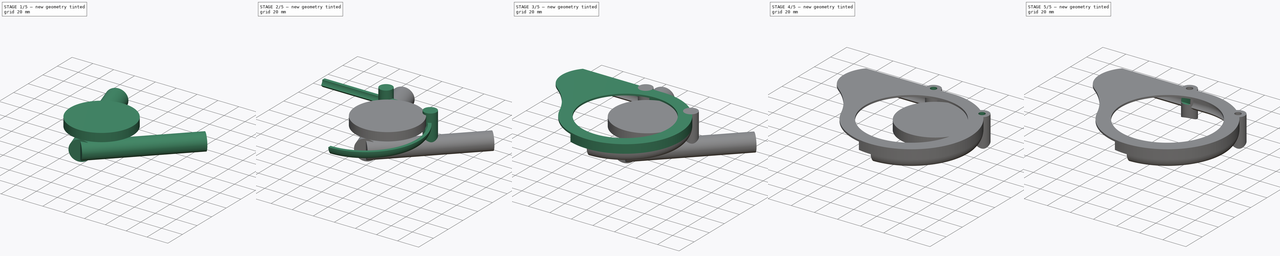
[diagram: build sequence overview — one tinted view per stage of 5, left to right]
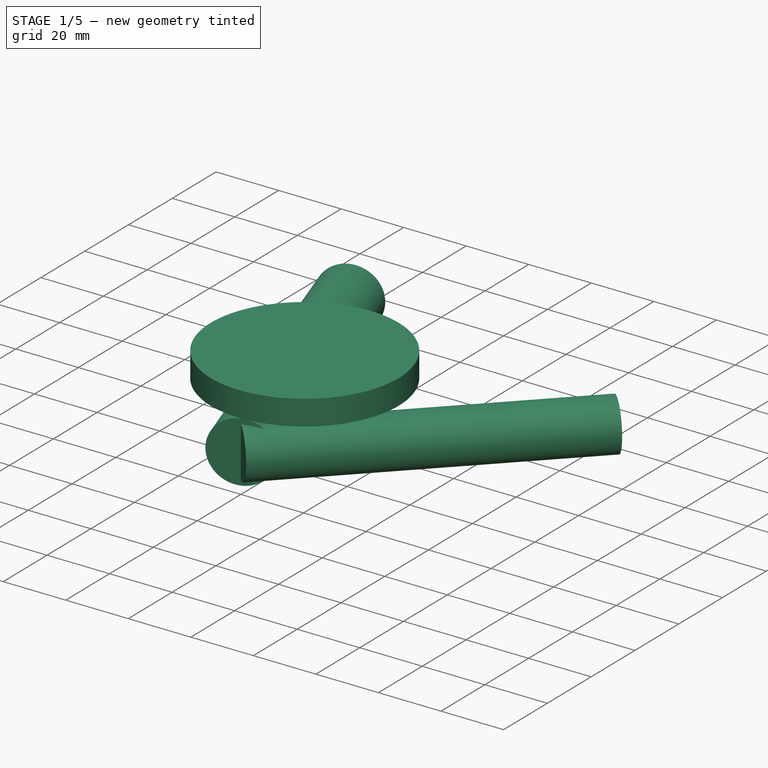
[diagram: stage 1 of 5 — iso view after this stage's code; geometry added in this stage tinted green]
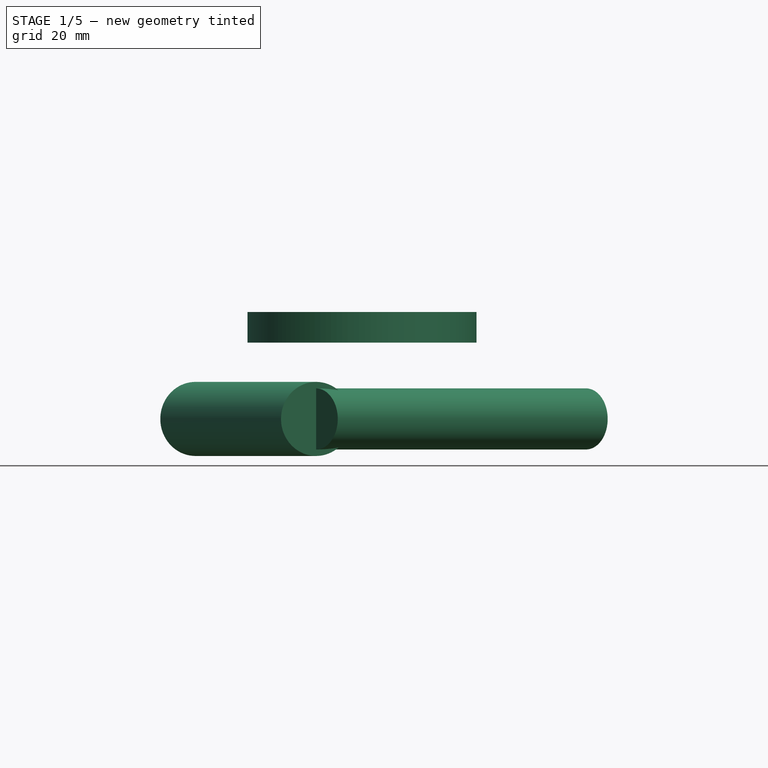
[diagram: stage 1 of 5 — front view after this stage's code; geometry added in this stage tinted green]
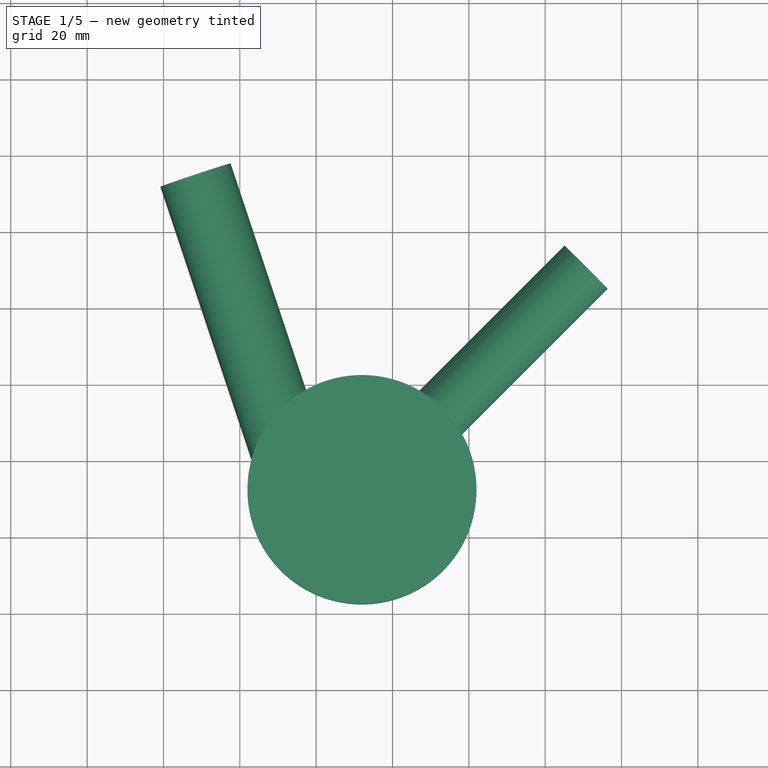
[diagram: stage 1 of 5 — top view after this stage's code; geometry added in this stage tinted green]
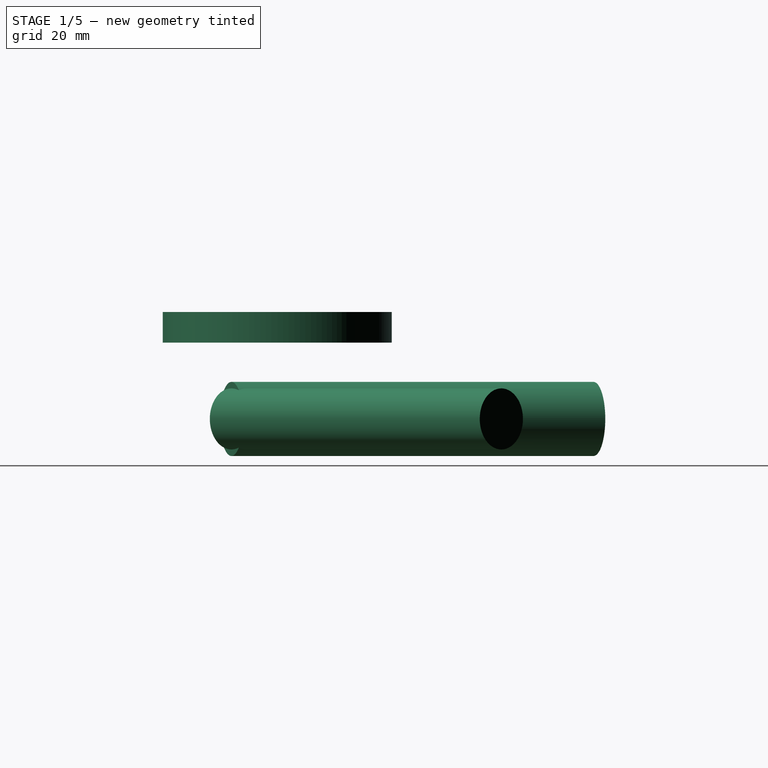
[diagram: stage 1 of 5 — right view after this stage's code; geometry added in this stage tinted green]
FCSTD DOCUMENT  (FreeCAD 0.16R)
Label: SimpleChainguard3
License: All rights reserved
LicenseURL: http://en.wikipedia.org/wiki/All_rights_reserved
objects: Sketcher::SketchObject×6, Part::Cylinder×4, PartDesign::Pad×3, Part::Cut×3, PartDesign::Pocket×2, Part::MultiFuse×2, PartDesign::Fillet×2, PartDesign::Revolution×1
note: 29 computed .brp shape members not serialized (recipe doc carries the construction recipe); baked Part::Feature solids carry a one-line shape summary decoded from their .brp

FEATURE [Part::Cylinder] Cylinder
  Angle = 360
  Height = 100
  Placement = pos=(0,0,-22) rot=(0.948683,0.316228,0;4.71239rad)
  Radius = 9.7
FEATURE [Part::Cylinder] Cylinder001
  Angle = 360
  Height = 100
  Placement = pos=(0,0,-22) rot=(-0.707107,0.707107,0;1.5708rad)
  Radius = 8
FEATURE [Part::Cylinder] Cylinder003
  Angle = 360
  Height = 8
  Placement = pos=(12,12,-2) rot=(0,0,1;0rad)
  Radius = 30
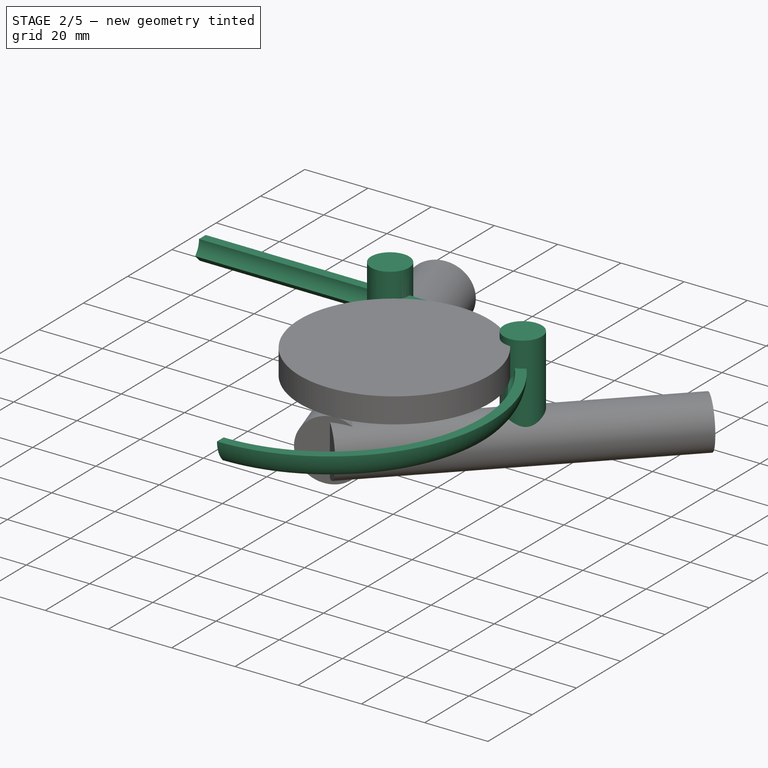
[diagram: stage 2 of 5 — iso view after this stage's code; geometry added in this stage tinted green]
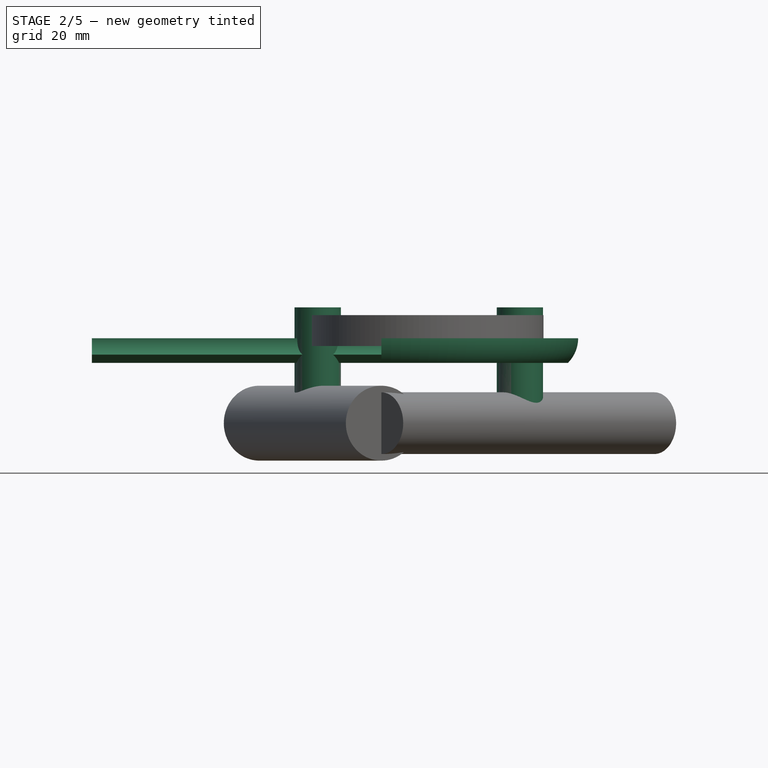
[diagram: stage 2 of 5 — front view after this stage's code; geometry added in this stage tinted green]
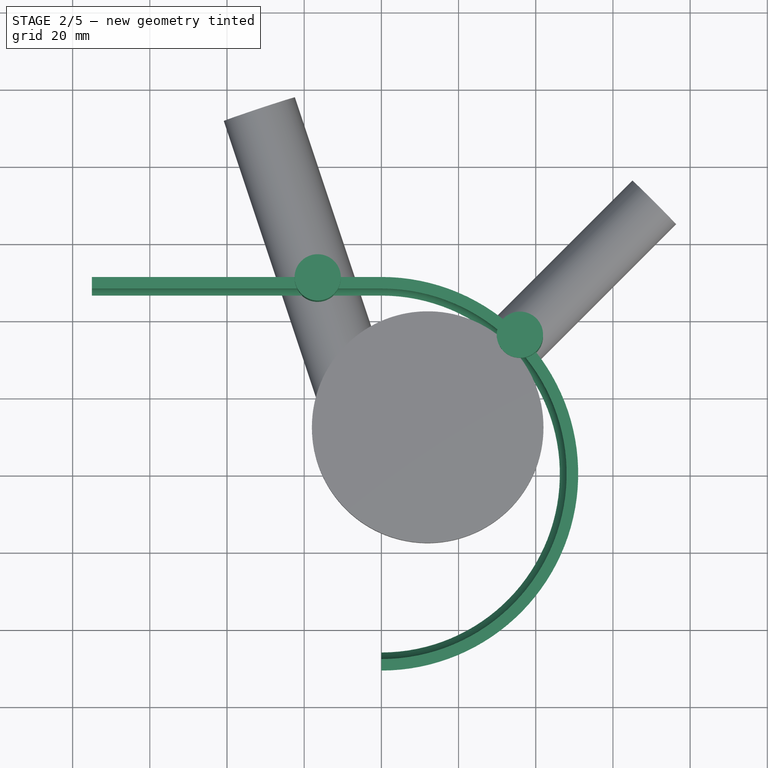
[diagram: stage 2 of 5 — top view after this stage's code; geometry added in this stage tinted green]
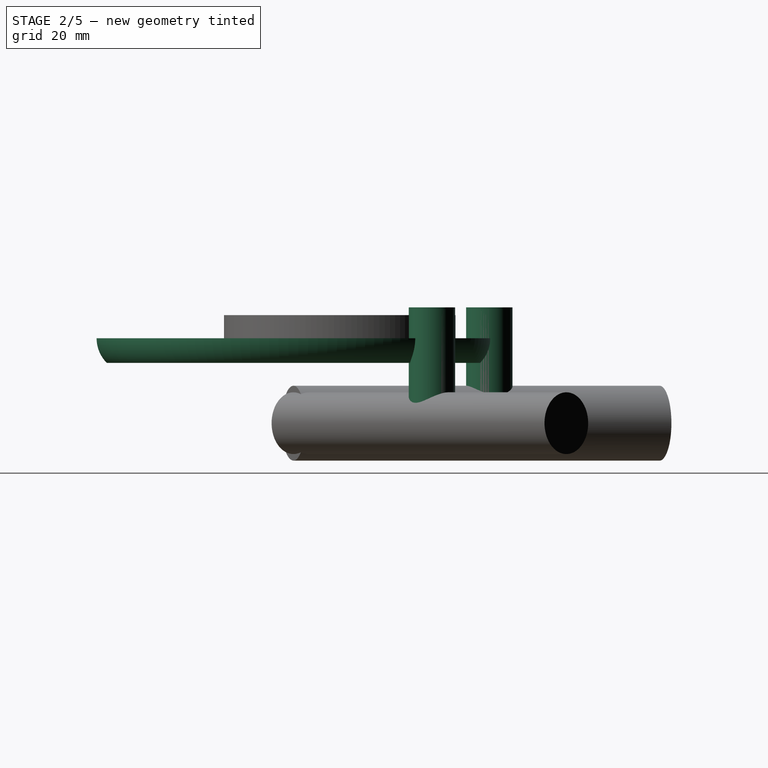
[diagram: stage 2 of 5 — right view after this stage's code; geometry added in this stage tinted green]
FEATURE [Sketcher::SketchObject] Sketch004
  Placement = pos=(0,0,0) rot=(0.57735,0.57735,0.57735;2.0944rad)
  sketch-geometry (6):
    g0: LineSegment StartX=48.3639 StartY=-6.36399 StartZ=0 EndX=46.2426 EndY=-4.24266 EndZ=0
    g1: ArcOfCircle CenterX=42 CenterY=0 CenterZ=0 NormalX=0 NormalY=0 NormalZ=1 Radius=6 StartAngle=5.49778 EndAngle=6.28319
    g2: ArcOfCircle CenterX=42 CenterY=0 CenterZ=0 NormalX=0 NormalY=0 NormalZ=1 Radius=9 StartAngle=5.49778 EndAngle=6.28319
    g3: LineSegment [constr] StartX=35.4204 StartY=-19.3075 StartZ=0 EndX=48.3639 EndY=-6.36399 EndZ=0
    g4: LineSegment [constr] StartX=20.3373 StartY=-30.148 StartZ=0 EndX=46.2426 EndY=-4.24266 EndZ=0
    g5: LineSegment StartX=48 StartY=0 StartZ=0 EndX=51 EndY=0 EndZ=0
  constraints (19):
    c: Coincident(g2,g1)
    c: Parallel(g3,g4)
    c: Angle(g4) = 0.785398
    c: Coincident(g0,g2)
    c: Coincident(g0,g1)
    c: Coincident(g5,g1)
    c: Coincident(g5,g2)
    c: Perpendicular(g2,g0)
    c: DistanceX(g1) = 42
    c: Distance(g3) = 18.3049
    c: Distance(g4) = 36.6357
    c: Distance(g5) = 3
    c: Coincident(g0,g3)
    c: Coincident(g4,g0)
    c: Tangent(g4,g1)
    c: Horizontal(g5)
    c: Perpendicular(g2,g5)
    c: DistanceX(g2) = 51
    c: PointOnObject(g2,g-1)
FEATURE [PartDesign::Revolution] Revolution
  Angle = 180
  Axis = (0,0,1)
  Base = (0,0,0)
  Placement = pos=(0,0,0) rot=(0.57735,0.57735,0.57735;2.0944rad)
  ReferenceAxis = -> Sketch004 [V_Axis]
  Reversed = true
  Sketch = -> Sketch004
FEATURE [Sketcher::SketchObject] Sketch005
  sketch-geometry (4):
    g0: LineSegment [constr] StartX=-45.1089 StartY=138.831 StartZ=0 EndX=0 EndY=0 EndZ=0
    g1: LineSegment [constr] StartX=122.75 StartY=122.75 StartZ=0 EndX=0 EndY=0 EndZ=0
    g2: Circle CenterX=-16.4924 CenterY=50.7583 CenterZ=0 NormalX=0 NormalY=0 NormalZ=1 Radius=6
    g3: Circle CenterX=35.8947 CenterY=35.8947 CenterZ=0 NormalX=0 NormalY=0 NormalZ=1 Radius=6
  constraints (8):
    c: Coincident(g0,g-1)
    c: Coincident(g1,g-1)
    c: Angle(g1) = -2.35619
    c: Angle(g0) = -1.25664
    c: Radius(g2) = 6
    c: PointOnObject(g2,g0)
    c: Radius(g3) = 6
    c: PointOnObject(g3,g1)
FEATURE [PartDesign::Pad] Pad001
  Length = 8
  Length2 = 25
  Sketch = -> Sketch005
  Type = 4
FEATURE [Sketcher::SketchObject] Sketch006
  Placement = pos=(0,0,0) rot=(0.57735,0.57735,0.57735;2.0944rad)
  sketch-geometry (6):
    g0: LineSegment StartX=48.3639 StartY=-6.36399 StartZ=0 EndX=46.2426 EndY=-4.24266 EndZ=0
    g1: ArcOfCircle CenterX=42 CenterY=0 CenterZ=0 NormalX=0 NormalY=0 NormalZ=1 Radius=6 StartAngle=5.49778 EndAngle=6.28319
    g2: ArcOfCircle CenterX=42 CenterY=0 CenterZ=0 NormalX=0 NormalY=0 NormalZ=1 Radius=9 StartAngle=5.49778 EndAngle=6.28319
    g3: LineSegment [constr] StartX=35.4204 StartY=-19.3075 StartZ=0 EndX=48.3639 EndY=-6.36399 EndZ=0
    g4: LineSegment [constr] StartX=20.3373 StartY=-30.148 StartZ=0 EndX=46.2426 EndY=-4.24266 EndZ=0
    g5: LineSegment StartX=48 StartY=0 StartZ=0 EndX=51 EndY=0 EndZ=0
  constraints (19):
    c: Coincident(g2,g1)
    c: Parallel(g3,g4)
    c: Angle(g4) = 0.785398
    c: Coincident(g0,g2)
    c: Coincident(g0,g1)
    c: Coincident(g5,g1)
    c: Coincident(g5,g2)
    c: Perpendicular(g2,g0)
    c: DistanceX(g1) = 42
    c: Distance(g3) = 18.3049
    c: Distance(g4) = 36.6357
    c: Distance(g5) = 3
    c: Coincident(g0,g3)
    c: Coincident(g4,g0)
    c: Tangent(g4,g1)
    c: Horizontal(g5)
    c: Perpendicular(g2,g5)
    c: DistanceX(g2) = 51
    c: PointOnObject(g2,g-1)
FEATURE [PartDesign::Pad] Pad002
  Length = 75
  Length2 = 100
  Placement = pos=(0,0,0) rot=(0.57735,0.57735,0.57735;2.0944rad)
  Reversed = true
  Sketch = -> Sketch006
  Type = 0
FEATURE [Part::MultiFuse] Fusion001
  Shapes = -> [Cylinder001,Cylinder]
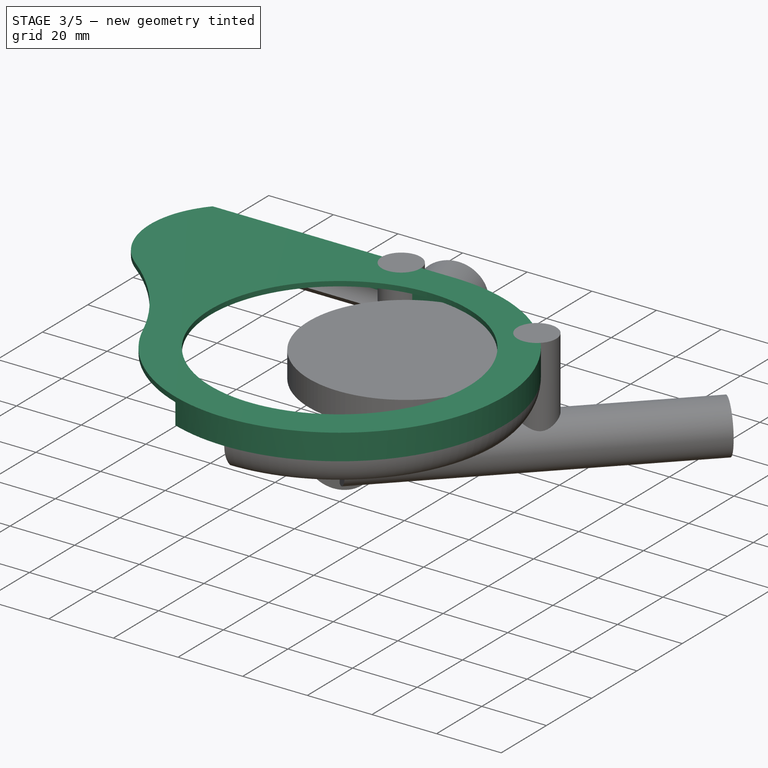
[diagram: stage 3 of 5 — iso view after this stage's code; geometry added in this stage tinted green]
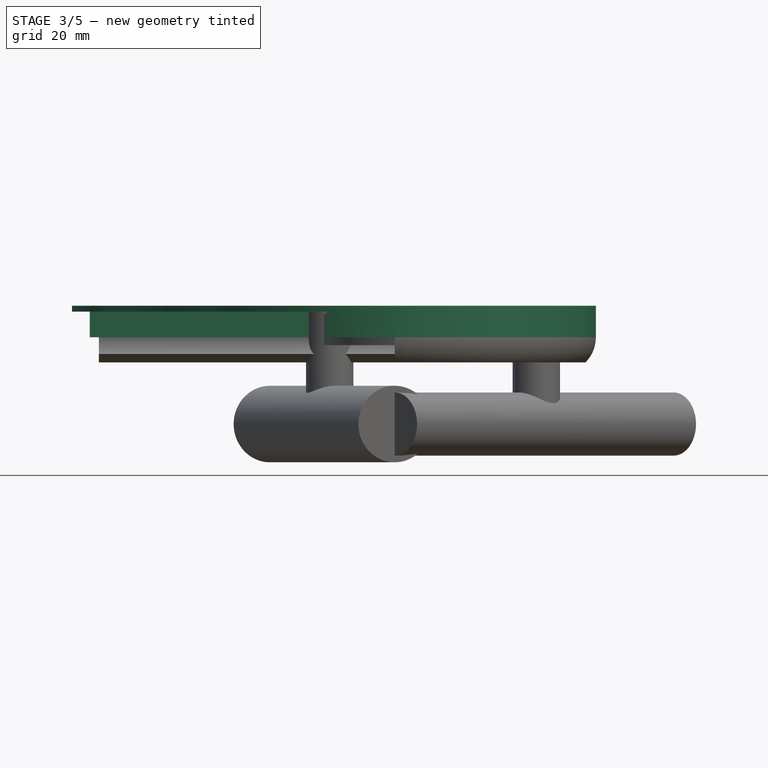
[diagram: stage 3 of 5 — front view after this stage's code; geometry added in this stage tinted green]
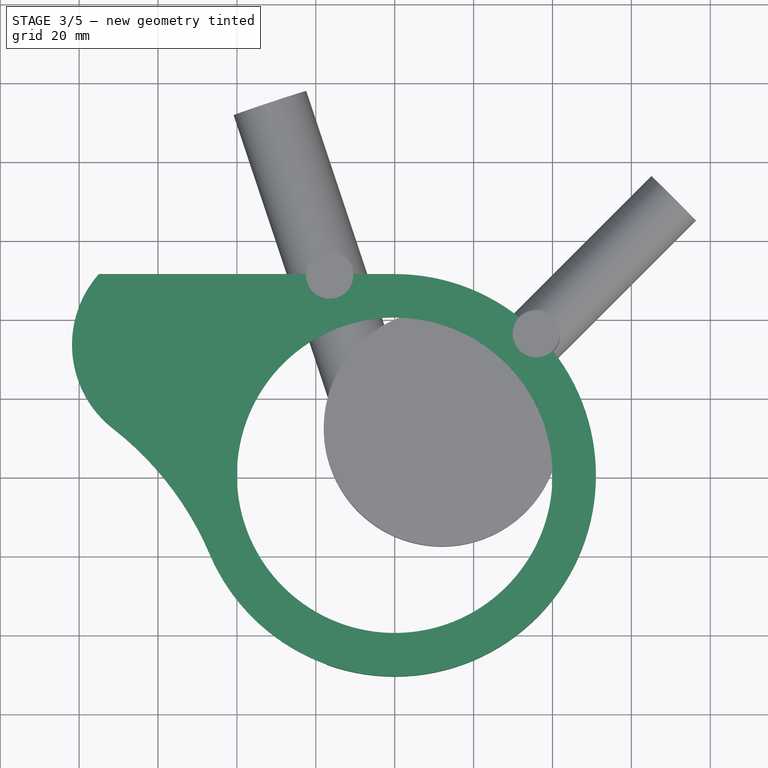
[diagram: stage 3 of 5 — top view after this stage's code; geometry added in this stage tinted green]
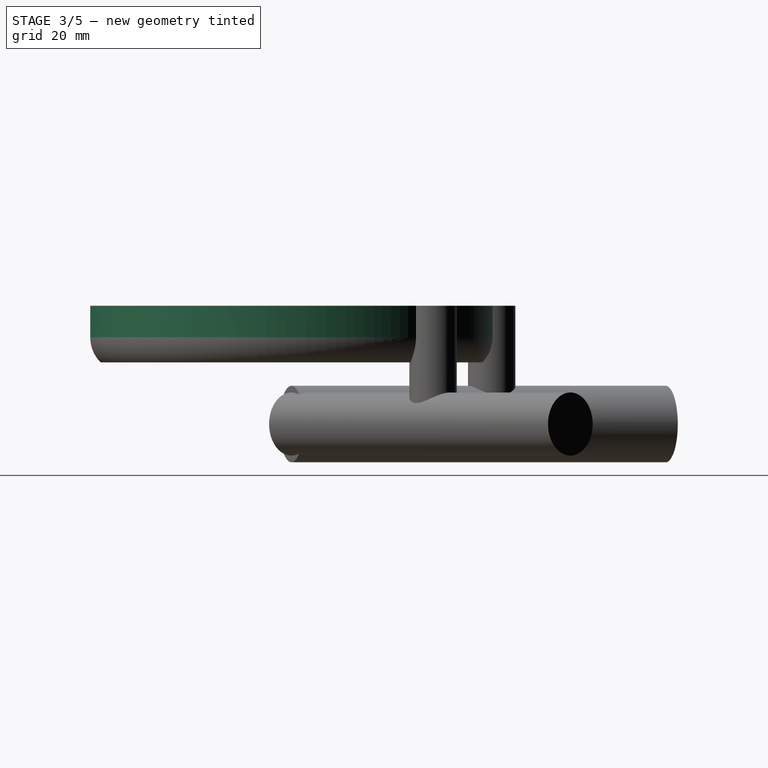
[diagram: stage 3 of 5 — right view after this stage's code; geometry added in this stage tinted green]
FEATURE [Sketcher::SketchObject] Sketch
  sketch-geometry (7):
    g0: Circle CenterX=0 CenterY=0 CenterZ=0 NormalX=0 NormalY=0 NormalZ=1 Radius=40
    g1: ArcOfCircle CenterX=0 CenterY=0 CenterZ=0 NormalX=0 NormalY=0 NormalZ=1 Radius=51 StartAngle=3.54457 EndAngle=7.85398
    g2: LineSegment StartX=-75 StartY=51 StartZ=0 EndX=0 EndY=51 EndZ=0
    g3: ArcOfCircle CenterX=-54.8043 CenterY=33.0798 CenterZ=0 NormalX=0 NormalY=0 NormalZ=1 Radius=27 StartAngle=2.41582 EndAngle=4.05122
    g4: ArcOfCircle CenterX=-120.507 CenterY=-51.3726 CenterZ=0 NormalX=0 NormalY=0 NormalZ=1 Radius=80 StartAngle=0.402976 EndAngle=0.909627
    g5: LineSegment [constr] StartX=0 StartY=0 StartZ=0 EndX=114.907 EndY=96.4181 EndZ=0
    g6: LineSegment [constr] StartX=-46.3525 StartY=142.658 StartZ=0 EndX=0 EndY=0 EndZ=0
  constraints (22):
    c: Radius(g0) = 40
    c: Coincident(g0,g-1)
    c: Coincident(g1,g-1)
    c: PointOnObject(g1,g-2)
    c: Coincident(g2,g1)
    c: Horizontal(g2)
    c: Distance(g2) = 75
    c: Coincident(g3,g2)
    c: Coincident(g4,g3)
    c: Coincident(g4,g1)
    c: Tangent(g4,g3)
    c: Tangent(g1,g4)
    c: Radius(g1) = 51
    c: Radius(g4) = 80
    c: Radius(g3) = 27
    c: Coincident(g5,g-1)
    c: Angle(g6) = -1.25664
    c: Coincident(g6,g-1)
    c: Angle(g5) = 0.698132
    c: Distance(g5) = 150
    c: Distance(g6) = 150
    c: DistanceY(g1) = -20
FEATURE [PartDesign::Pad] Pad
  Length = 8
  Length2 = 100
  Sketch = -> Sketch
  Type = 0
FEATURE [Sketcher::SketchObject] Sketch001
  ExternalGeometry = -> [Pad]
  Placement = pos=(0,0,0) rot=(1,0,0;3.14159rad)
  Support = -> Pad [Face6]
  sketch-geometry (4):
    g0: LineSegment StartX=-146.216 StartY=-48 StartZ=0 EndX=0 EndY=-48 EndZ=0
    g1: ArcOfCircle CenterX=0 CenterY=0 CenterZ=0 NormalX=0 NormalY=0 NormalZ=1 Radius=48 StartAngle=4.71239 EndAngle=7.85398
    g2: LineSegment StartX=0 StartY=48 StartZ=0 EndX=-146.216 EndY=48 EndZ=0
    g3: LineSegment StartX=-146.216 StartY=-48 StartZ=0 EndX=-146.216 EndY=48 EndZ=0
  constraints (12):
    c: Coincident(g1,g-1)
    c: PointOnObject(g1,g-2)
    c: Coincident(g2,g1)
    c: Horizontal(g2)
    c: Coincident(g3,g0)
    c: Coincident(g3,g2)
    c: Vertical(g3)
    c: Distance(g2) = 146.216
    c: Coincident(g0,g1)
    c: PointOnObject(g0,g-2)
    c: Distance(g-4,g0) = 3
    c: Horizontal(g0)
FEATURE [PartDesign::Pocket] Pocket
  Length = 6.5
  Sketch = -> Sketch001
  Type = 0
FEATURE [Part::MultiFuse] Fusion
  Shapes = -> [Pocket,Revolution,Pad001,Pad002]
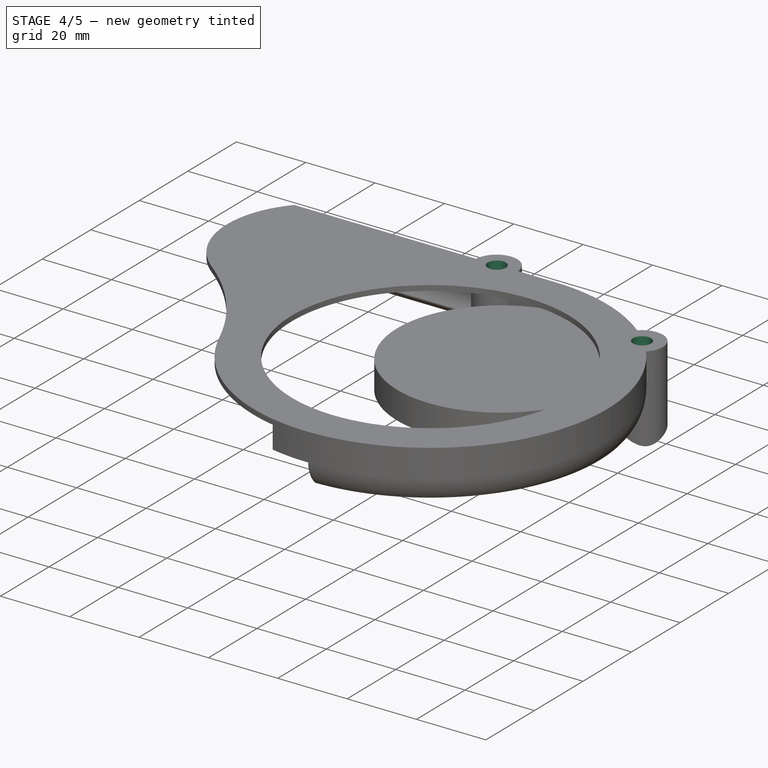
[diagram: stage 4 of 5 — iso view after this stage's code; geometry added in this stage tinted green]
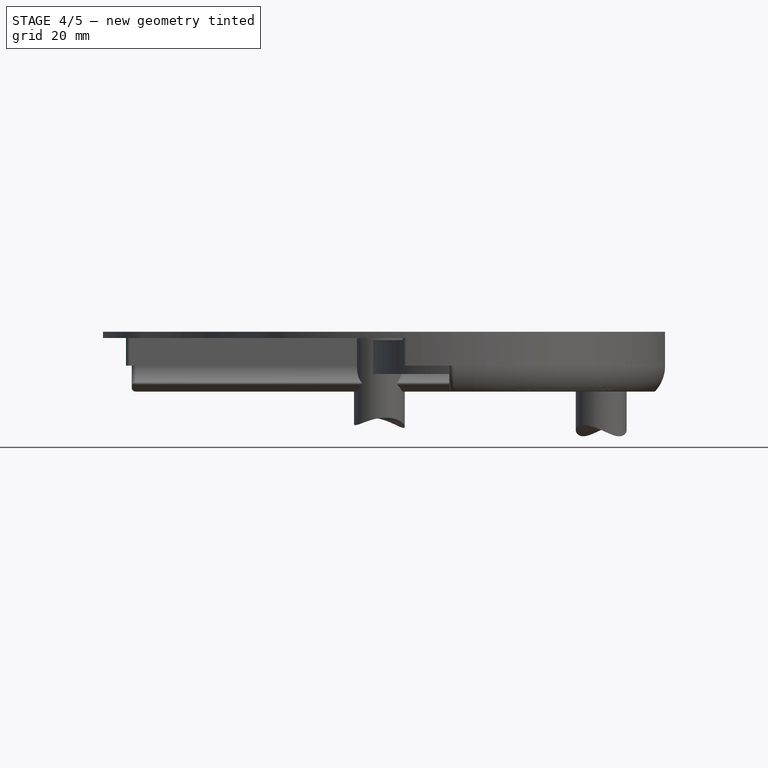
[diagram: stage 4 of 5 — front view after this stage's code; geometry added in this stage tinted green]
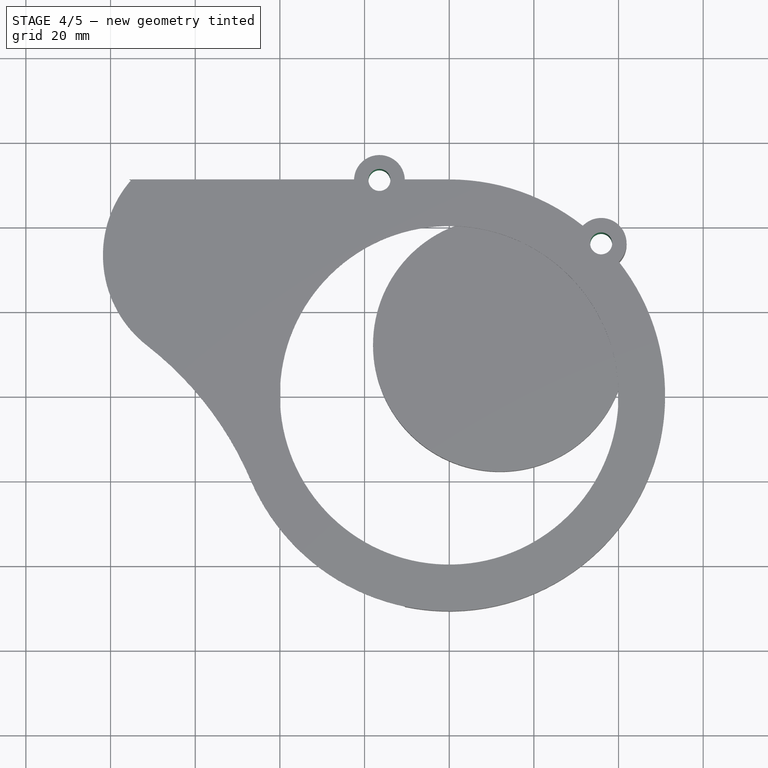
[diagram: stage 4 of 5 — top view after this stage's code; geometry added in this stage tinted green]
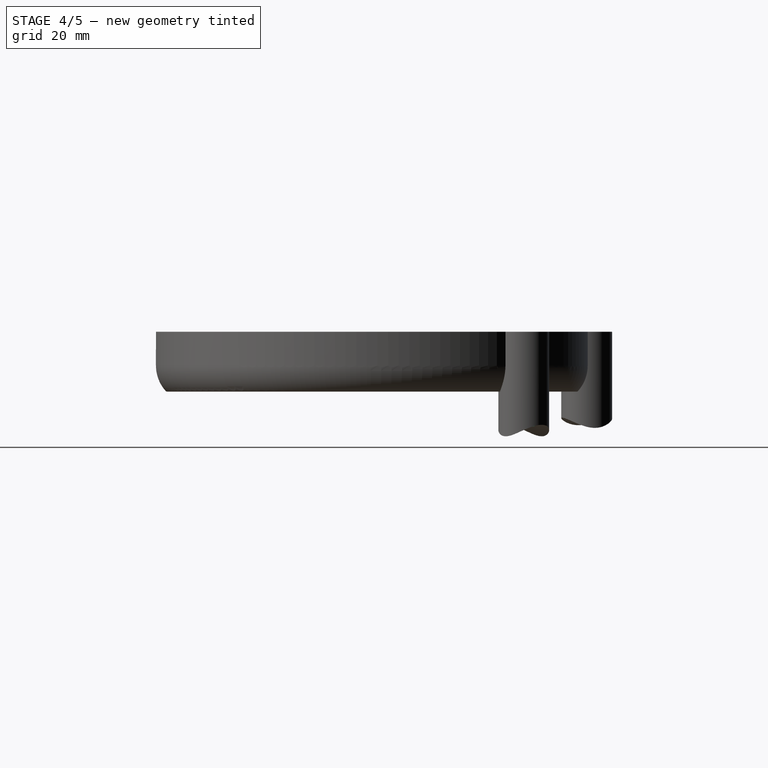
[diagram: stage 4 of 5 — right view after this stage's code; geometry added in this stage tinted green]
FEATURE [Part::Cut] Cut
  Base = -> Fusion
  Tool = -> Fusion001
FEATURE [PartDesign::Fillet] Fillet
  Base = -> Cut [Edge27,Edge17,Edge91,Edge87,Edge75,Edge77]
  Radius = 1
FEATURE [PartDesign::Fillet] Fillet001
  Base = -> Fillet [Edge79,Edge77,Edge93,Edge91,Edge105,Edge97,Edge110,Edge107]
  Radius = 0.5
FEATURE [Sketcher::SketchObject] Sketch007
  ExternalGeometry = -> [Fillet001]
  Placement = pos=(0,0,8) rot=(0,0,1;0rad)
  Support = -> Fillet001 [Face48]
  sketch-geometry (2):
    g0: Circle CenterX=35.8947 CenterY=35.8947 CenterZ=0 NormalX=0 NormalY=0 NormalZ=1 Radius=2.6
    g1: Circle CenterX=-16.4899 CenterY=50.8791 CenterZ=0 NormalX=0 NormalY=0 NormalZ=1 Radius=2.6
  constraints (4):
    c: Radius(g1) = 2.6
    c: Equal(g1,g0)
    c: Symmetric(g-4,g-4,g1)
    c: Coincident(g0,g-6)
FEATURE [PartDesign::Pocket] Pocket001
  Length = 5
  Sketch = -> Sketch007
  Type = 1
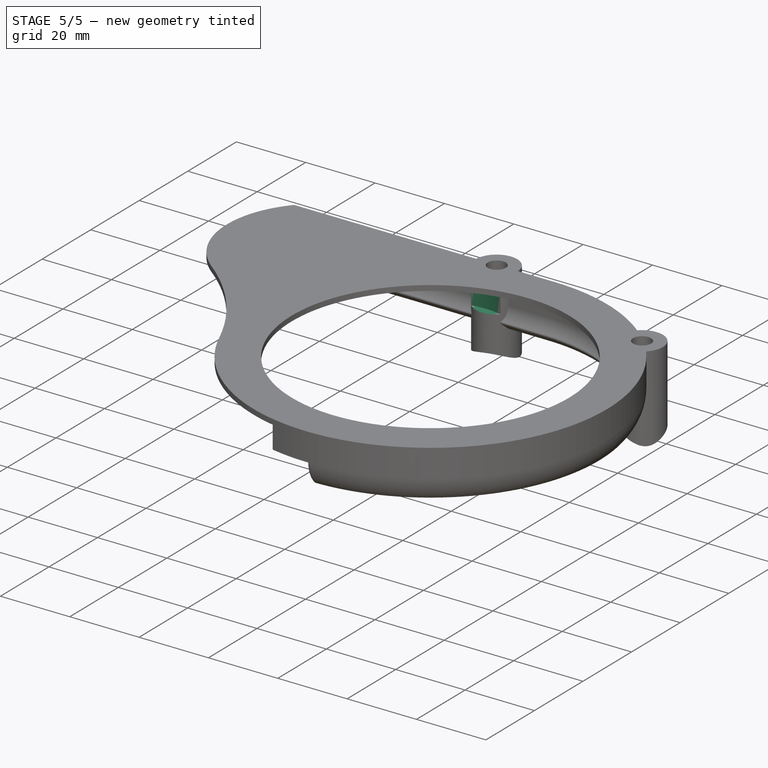
[diagram: stage 5 of 5 — iso view after this stage's code; geometry added in this stage tinted green]
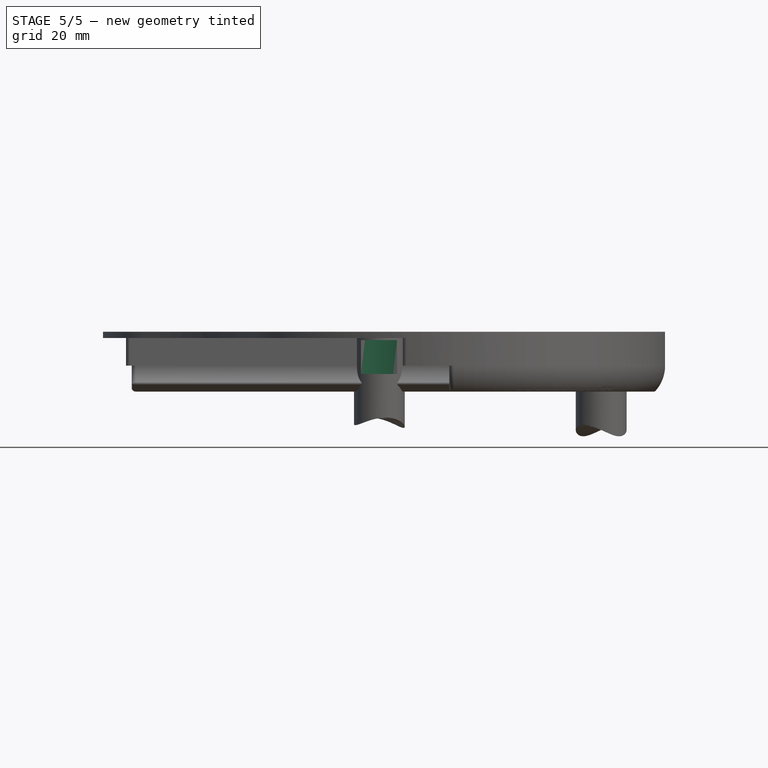
[diagram: stage 5 of 5 — front view after this stage's code; geometry added in this stage tinted green]
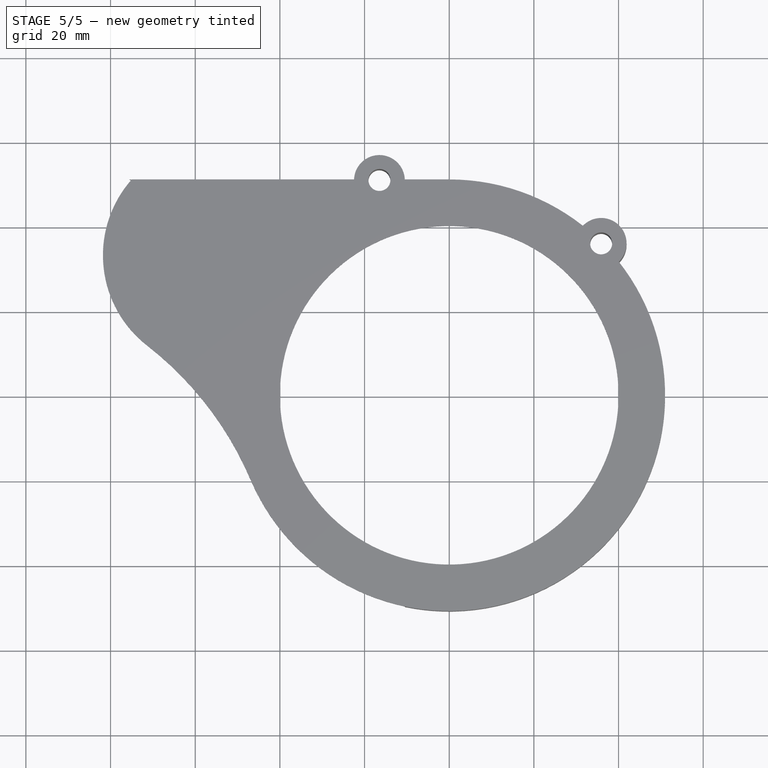
[diagram: stage 5 of 5 — top view after this stage's code; geometry added in this stage tinted green]
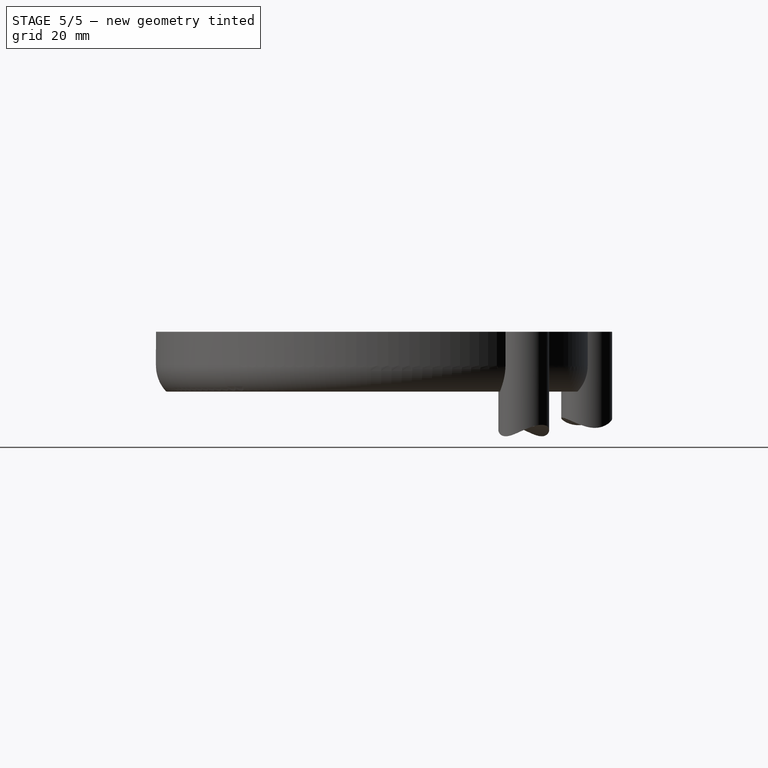
[diagram: stage 5 of 5 — right view after this stage's code; geometry added in this stage tinted green]
FEATURE [Part::Cylinder] Cylinder002
  Angle = 360
  Height = 8
  Placement = pos=(-17,27,-2) rot=(0,0,1;0rad)
  Radius = 20
FEATURE [Part::Cut] Cut001
  Base = -> Pocket001
  Tool = -> Cylinder003
FEATURE [Part::Cut] Cut002
  Base = -> Cut001
  Tool = -> Cylinder002
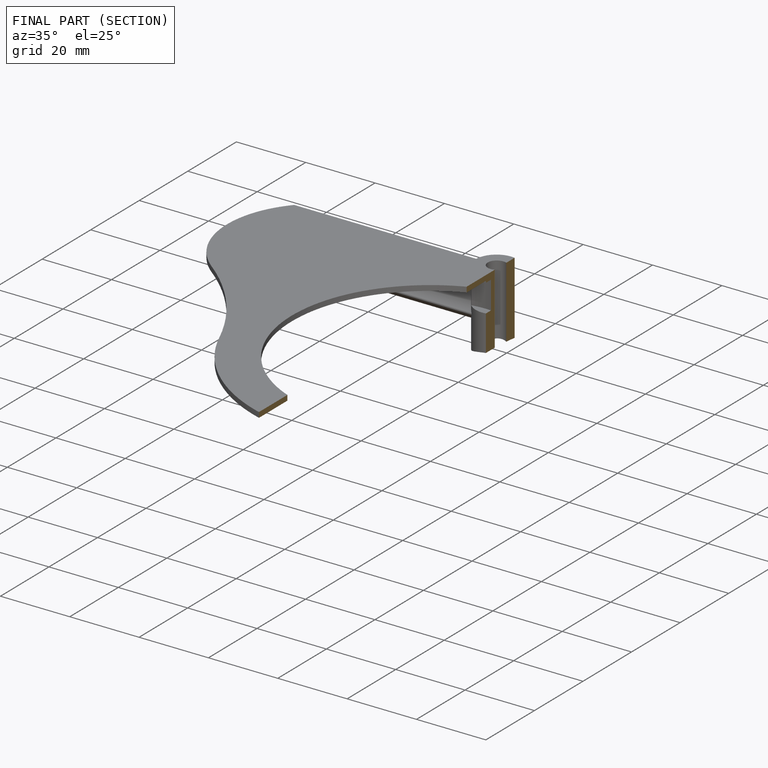
[diagram: finished part — half-section view (interior)]
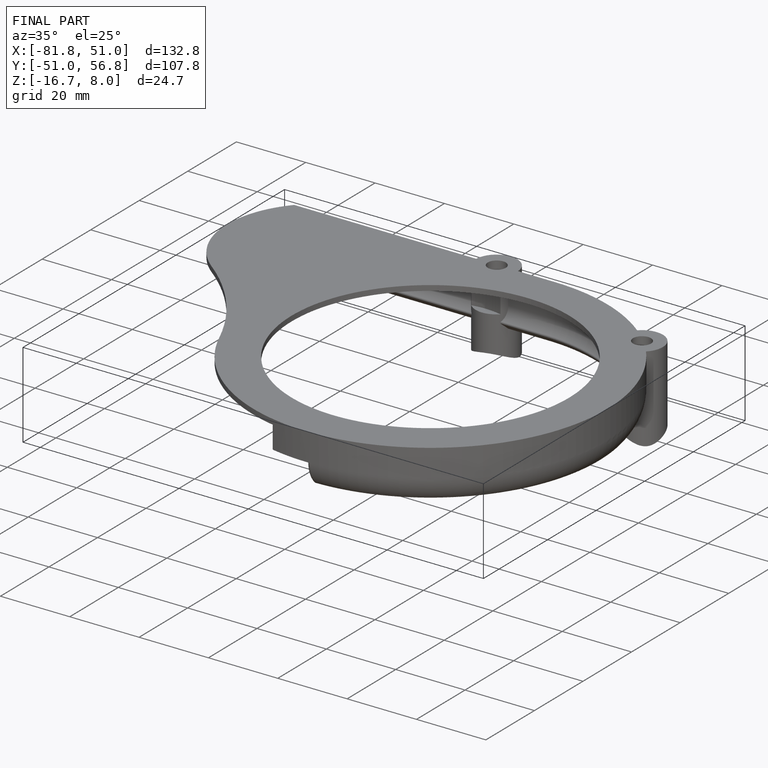
[diagram: finished part — iso view with bounding-box wireframe]
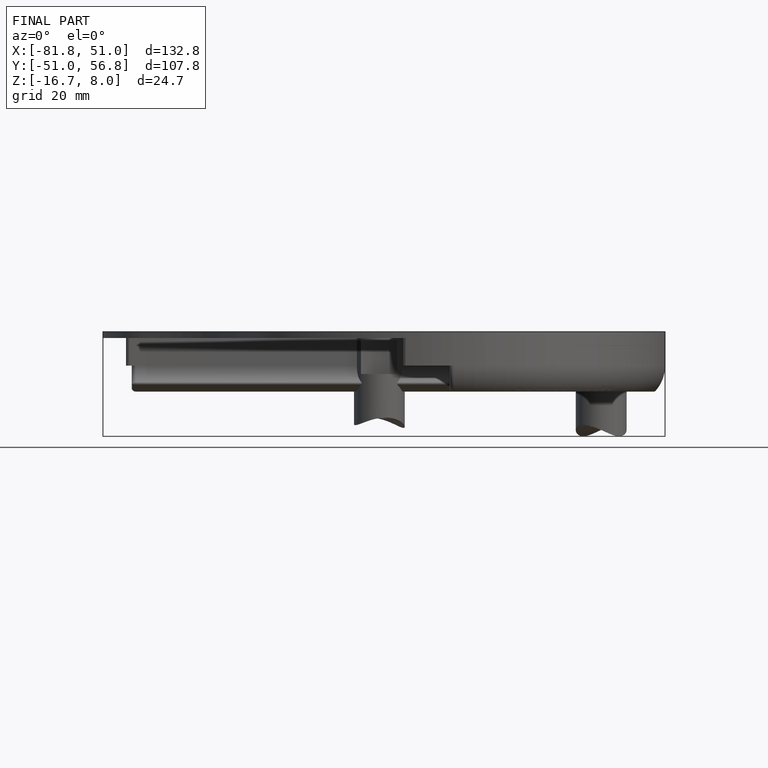
[diagram: finished part — front view with bounding-box wireframe]
